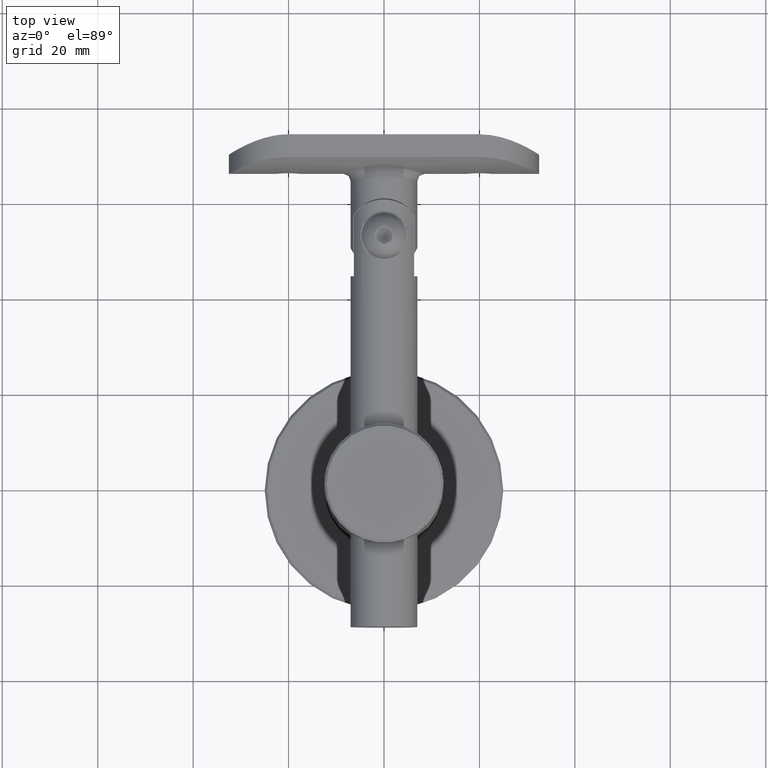
[diagram: clean part render]
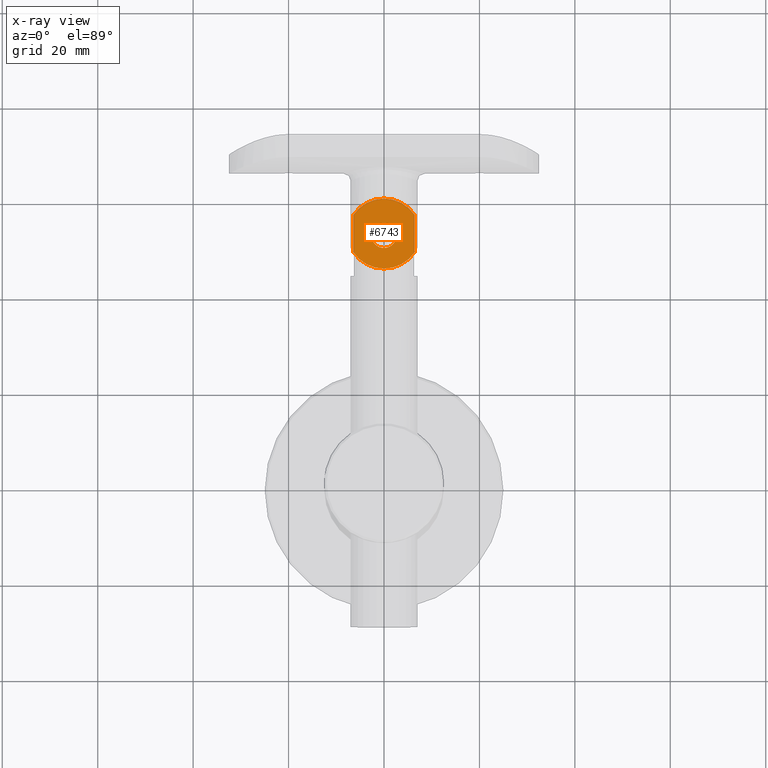
[diagram: x-ray — body ghosted, one internal face saturated and labeled with its STEP entity id]
A machine part, top view, then the same camera in x-ray: the body is ghosted and one INTERNAL B-rep face — a face not visible from any outside direction — is saturated and labeled: STEP entity #6743.
In plain terms, the highlighted planar face has unit normal (-0, -0, 1).
Its self-contained STEP definition (entity closure, byte-faithful):
#326 = EDGE_CURVE ( 'NONE', #2744, #3397, #7434, .T. ) ;
#678 = CARTESIAN_POINT ( 'NONE',  ( 2.750000000000000000, 500000.0000000000600, 6.437196594762222700 ) ) ;
#695 = ORIENTED_EDGE ( 'NONE', *, *, #13766, .T. ) ;
#704 = DIRECTION ( 'NONE',  ( 0.0000000000000000000, 0.0000000000000000000, -1.000000000000000000 ) ) ;
#2292 = CARTESIAN_POINT ( 'NONE',  ( 2.749999999999999600, -8.684330874547768500, -6.437196594762222700 ) ) ;
#2446 = ORIENTED_EDGE ( 'NONE', *, *, #9356, .F. ) ;
#2629 = DIRECTION ( 'NONE',  ( 0.0000000000000000000, 0.0000000000000000000, -1.000000000000000000 ) ) ;
#2744 = VERTEX_POINT ( 'NONE', #8948 ) ;
#3192 = LINE ( 'NONE', #5068, #16210 ) ;
#3397 = VERTEX_POINT ( 'NONE', #11166 ) ;
#3512 = CARTESIAN_POINT ( 'NONE',  ( 2.749999999999999600, -8.684330874547768500, 6.437196594762222700 ) ) ;
#5068 = CARTESIAN_POINT ( 'NONE',  ( 2.750000000000000000, 500000.0000000000600, -6.437196594762222700 ) ) ;
#6458 = ORIENTED_EDGE ( 'NONE', *, *, #19356, .F. ) ;
#6743 = ADVANCED_FACE ( 'NONE', ( #16883, #19410 ), #16975, .T. ) ;
#7379 = CARTESIAN_POINT ( 'NONE',  ( 2.750000000000000000, -13.00000000000000200, 0.0000000000000000000 ) ) ;
#7434 = CIRCLE ( 'NONE', #16299, 7.750000000000000000 ) ;
#7502 = VERTEX_POINT ( 'NONE', #3512 ) ;
#8587 = VERTEX_POINT ( 'NONE', #2292 ) ;
#8735 = DIRECTION ( 'NONE',  ( -1.387778780781445400E-016, 1.000000000000000000, -0.0000000000000000000 ) ) ;
#8948 = CARTESIAN_POINT ( 'NONE',  ( 2.750000000025709700, -16.48846095386171800, 6.437196594780884200 ) ) ;
#9099 = EDGE_LOOP ( 'NONE', ( #9651, #6458, #13438, #2446 ) ) ;
#9356 = EDGE_CURVE ( 'NONE', #2744, #7502, #17593, .T. ) ;
#9651 = ORIENTED_EDGE ( 'NONE', *, *, #326, .T. ) ;
#10030 = DIRECTION ( 'NONE',  ( 0.0000000000000000000, 0.0000000000000000000, -1.000000000000000000 ) ) ;
#10044 = CARTESIAN_POINT ( 'NONE',  ( 2.750000000000000000, -13.00000000000000200, 0.0000000000000000000 ) ) ;
#10106 = CARTESIAN_POINT ( 'NONE',  ( 2.750000000000000000, -13.00000000000000200, 0.0000000000000000000 ) ) ;
#10303 = AXIS2_PLACEMENT_3D ( 'NONE', #10106, #11569, #10030 ) ;
#10312 = CARTESIAN_POINT ( 'NONE',  ( 2.750000000000000900, -12.17279182843732100, 0.0000000000000000000 ) ) ;
#10455 = AXIS2_PLACEMENT_3D ( 'NONE', #10044, #17886, #19555 ) ;
#11166 = CARTESIAN_POINT ( 'NONE',  ( 2.750000000000001300, -16.48846095388955400, -6.437196594762222700 ) ) ;
#11569 = DIRECTION ( 'NONE',  ( -1.000000000000000000, -0.0000000000000000000, -0.0000000000000000000 ) ) ;
#11922 = DIRECTION ( 'NONE',  ( 1.000000000000000000, 0.0000000000000000000, 0.0000000000000000000 ) ) ;
#12232 = DIRECTION ( 'NONE',  ( 1.000000000000000000, 0.0000000000000000000, 0.0000000000000000000 ) ) ;
#12410 = EDGE_LOOP ( 'NONE', ( #695 ) ) ;
#12523 = CARTESIAN_POINT ( 'NONE',  ( 2.750000000000000000, -13.00000000000000200, -2.600000000000005000 ) ) ;
#12839 = VECTOR ( 'NONE', #8735, 1000.000000000000000 ) ;
#13438 = ORIENTED_EDGE ( 'NONE', *, *, #17830, .T. ) ;
#13766 = EDGE_CURVE ( 'NONE', #14452, #14452, #18899, .T. ) ;
#14452 = VERTEX_POINT ( 'NONE', #12523 ) ;
#14475 = DIRECTION ( 'NONE',  ( 1.387778780781445400E-016, -1.000000000000000000, 0.0000000000000000000 ) ) ;
#15227 = CIRCLE ( 'NONE', #10455, 7.750000000000000000 ) ;
#16210 = VECTOR ( 'NONE', #14475, 1000.000000000000000 ) ;
#16299 = AXIS2_PLACEMENT_3D ( 'NONE', #10312, #11922, #704 ) ;
#16883 = FACE_BOUND ( 'NONE', #12410, .T. ) ;
#16975 = PLANE ( 'NONE',  #17413 ) ;
#17413 = AXIS2_PLACEMENT_3D ( 'NONE', #7379, #12232, #2629 ) ;
#17593 = LINE ( 'NONE', #678, #12839 ) ;
#17830 = EDGE_CURVE ( 'NONE', #8587, #7502, #15227, .T. ) ;
#17886 = DIRECTION ( 'NONE',  ( 1.000000000000000000, 0.0000000000000000000, 0.0000000000000000000 ) ) ;
#18899 = CIRCLE ( 'NONE', #10303, 2.600000000000005000 ) ;
#19356 = EDGE_CURVE ( 'NONE', #8587, #3397, #3192, .T. ) ;
#19410 = FACE_OUTER_BOUND ( 'NONE', #9099, .T. ) ;
#19555 = DIRECTION ( 'NONE',  ( 0.0000000000000000000, 0.0000000000000000000, -1.000000000000000000 ) ) ;